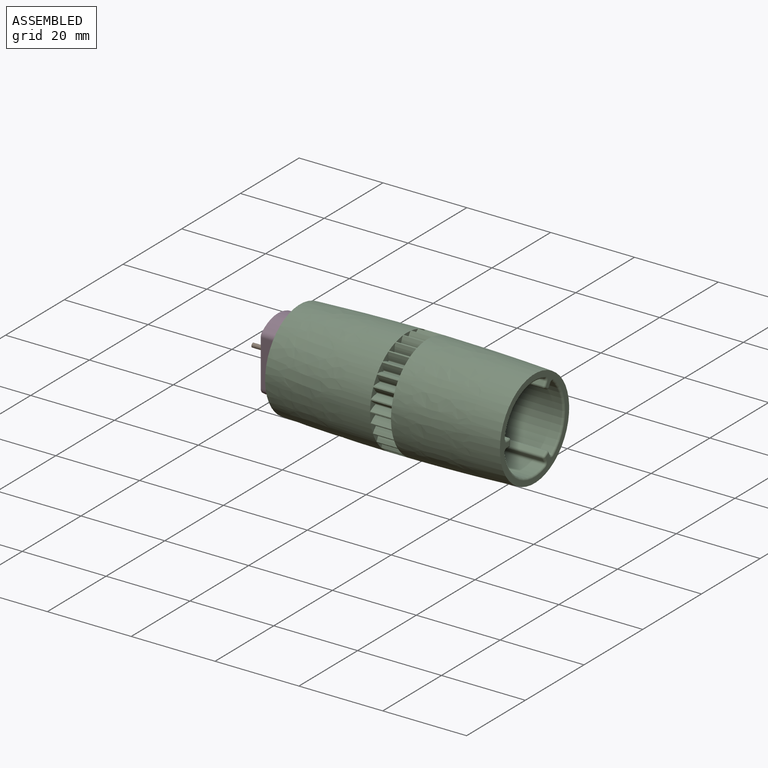
[diagram: assembled view]
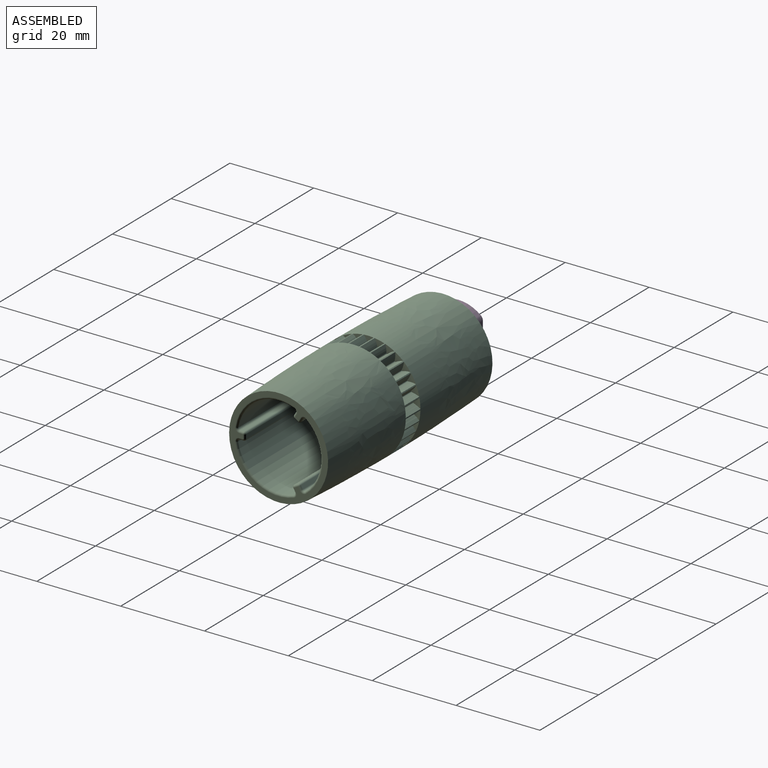
[diagram: assembled view, second angle]
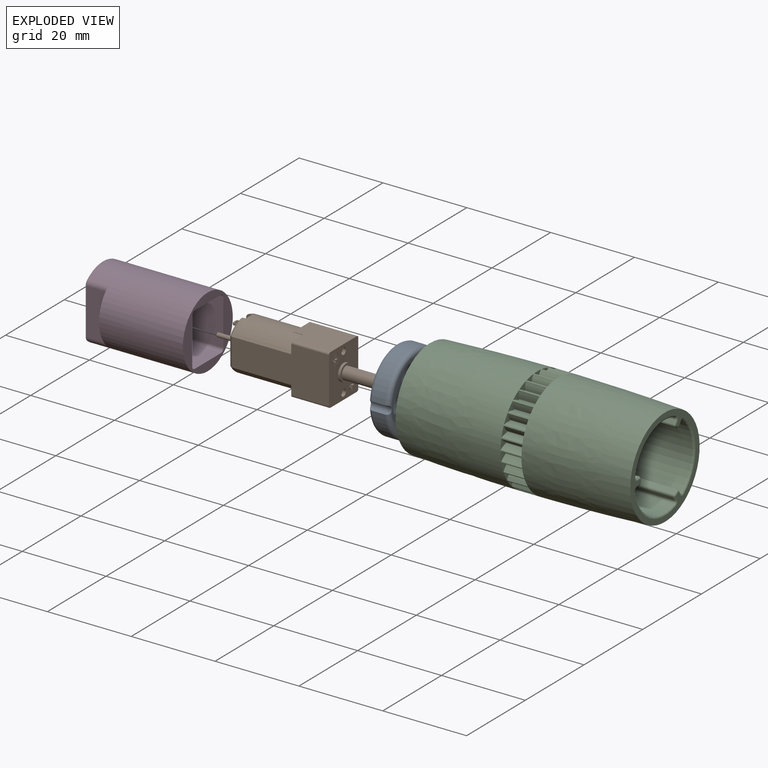
[diagram: exploded view]
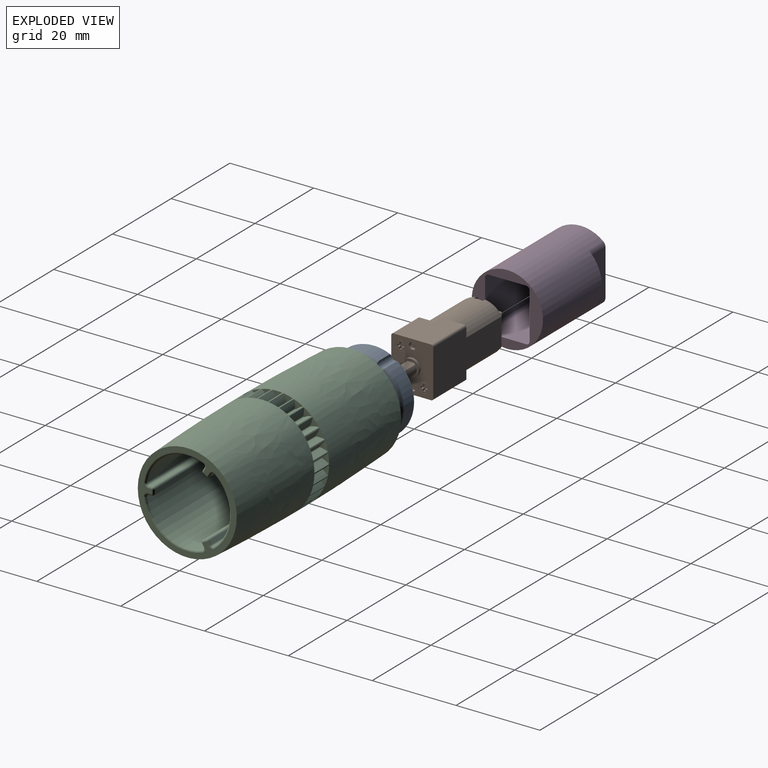
[diagram: exploded view, second angle]
ASSEMBLY  parts=4 mates=3
PART A: 26 faces, bbox 5x21.1x21.1 mm
  f0: cylinder r=1mm len=5mm, axis (-1,0,0), area 14.3mm2, adj f1,f15,f18,f19,f20,f22,f23,f25
  f1: cylinder r=9.75mm len=13.68mm, axis (-1,0,0), area 55.3mm2, adj f0,f2,f22,f25
  f2: cylinder r=1mm len=5mm, axis (-1,0,0), area 14.3mm2, adj f1,f3,f18,f19,f21,f22,f24,f25
  f3: cylinder r=9.75mm len=15.8mm, axis (-1,0,0), area 55.3mm2, adj f2,f4,f21,f24
  f4: cylinder r=1mm len=5mm, axis (-1,0,0), area 14.3mm2, adj f3,f15,f18,f19,f20,f21,f23,f24
  f5: plane 5x2.32mm, normal (0,0,-1), area 11.6mm2, adj f6,f16,f18,f19
  f6: cylinder r=1.6mm len=5mm, axis (-1,0,0), area 18mm2, adj f5,f7,f18,f19
  f7: plane 5x1.91mm, normal (0,-1,0), area 9.5mm2, adj f6,f8,f18,f19
  f8: cylinder r=0.12mm len=5mm, axis (-1,0,0), area 2mm2, adj f7,f9,f18,f19
  f9: plane 5x1.91mm, normal (0,1,0), area 9.5mm2, adj f8,f16,f18,f19
  f10: cylinder r=2.5mm len=5mm, axis (-1,0,0), area 78.5mm2, adj f18,f19
  f11: cylinder r=2.5mm len=5mm, axis (-1,0,0), area 78.5mm2, adj f18,f19
  f12: cylinder r=2.5mm len=5mm, axis (-1,0,0), area 78.5mm2, adj f18,f19
  f13: cylinder r=2.5mm len=5mm, axis (-1,0,0), area 78.5mm2, adj f18,f19
  f14: cylinder r=2.5mm len=5mm, axis (-1,0,0), area 78.5mm2, adj f18,f19
  f15: cylinder r=9.75mm len=13.68mm, axis (-1,0,0), area 55.3mm2, adj f0,f4,f20,f23
  f16: cylinder r=1.6mm len=5mm, axis (-1,0,0), area 18mm2, adj f5,f9,f18,f19
  f17: cylinder r=2.5mm len=5mm, axis (-1,0,0), area 78.5mm2, adj f18,f19
  f18: plane 17.5x17.5mm, normal (1,0,0), area 115mm2, adj f0,f2,f4,f5,f6,f7,f8,f9
  f19: plane 17.5x17.5mm, normal (-1,0,0), area 115mm2, adj f0,f2,f4,f5,f6,f7,f8,f9
  f20: torus R=8.75mm, axis (1,0,0), area 28.2mm2, adj f0,f4,f15,f19
  f21: torus R=8.75mm, axis (1,0,0), area 28.2mm2, adj f2,f3,f4,f19
  f22: torus R=8.75mm, axis (1,0,0), area 28.2mm2, adj f0,f1,f2,f19
  f23: torus R=8.75mm, axis (1,0,0), area 28.2mm2, adj f0,f4,f15,f18
  f24: torus R=8.75mm, axis (1,0,0), area 28.2mm2, adj f2,f3,f4,f18
  f25: torus R=8.75mm, axis (1,0,0), area 28.2mm2, adj f0,f1,f2,f18
PART B: 107 faces, bbox 39.4x10.9x12.9 mm
  f0: plane 5x2.68mm, normal (-1,0,0), area 3.9mm2, adj f6,f12,f17,f99
  f1: plane 1x0.08mm, normal (-1,0,0), area 0mm2, adj f12,f97,f99
  f2: plane 5x2.68mm, normal (-1,0,0), area 3.9mm2, adj f5,f7,f16,f17
  f3: plane 1x0.08mm, normal (-1,0,0), area 0mm2, adj f5,f16,f98
  f4: plane 11x9mm, normal (0,-1,0), area 99mm2, adj f8,f9,f94,f95,f96,f100
  f5: plane 11.3x9mm, normal (0,0,1), area 93.6mm2, adj f2,f3,f7,f8,f94,f95,f98
  f6: cylinder r=0.5mm len=11.3mm, axis (-1,0,0), area 8.9mm2, adj f0,f17,f94,f99
  f7: cylinder r=0.5mm len=11.3mm, axis (-1,0,0), area 8.9mm2, adj f2,f5,f17,f94
  f8: cylinder r=0.5mm len=9mm, axis (-1,0,0), area 7.1mm2, adj f4,f5,f94,f95
  f9: cylinder r=0.5mm len=9mm, axis (-1,0,0), area 7.1mm2, adj f4,f94,f96,f99
  f10: plane 4x4mm, normal (-1,0,0), area 11.8mm2, adj f38,f47
  f11: plane 9.78x8mm, normal (-1,0,0), area 47.2mm2, adj f13,f14,f15,f18,f19,f20,f21,f22
  f12: cylinder r=6mm len=14mm, axis (1,0,0), area 148.5mm2, adj f0,f1,f13,f14,f17,f43,f45,f46
  f13: torus R=5mm, axis (1,0,0), area 6.8mm2, adj f11,f12,f20,f43
  f14: torus R=5mm, axis (1,0,0), area 6.9mm2, adj f11,f12,f18,f45,f103
  f15: torus R=5mm, axis (1,0,0), area 6.9mm2, adj f11,f16,f18,f39,f102,f103
  f16: cylinder r=6mm len=14mm, axis (1,0,0), area 148.5mm2, adj f2,f3,f15,f17,f19,f39,f41,f42
  f17: plane 23x11mm, normal (0,1,0), area 201.9mm2, adj f0,f2,f6,f7,f12,f16,f20,f94
  f18: cylinder r=1mm len=6.63mm, axis (0,0,1), area 9.8mm2, adj f11,f14,f15,f103
  f19: torus R=5mm, axis (1,0,0), area 6.8mm2, adj f11,f16,f20,f41
  f20: cylinder r=1mm len=6.63mm, axis (0,0,-1), area 9.9mm2, adj f11,f13,f17,f19
  f21: plane 2x1.6mm, normal (0,0,-1), area 2.4mm2, adj f11,f22,f24,f25,f32,f33,f34
  f22: plane 1.8x0.5mm, normal (0,-1,0), area 0.9mm2, adj f11,f21,f23,f33
  f23: plane 2x1.6mm, normal (0,0,1), area 2.4mm2, adj f11,f22,f24,f25,f32,f33,f34
  f24: plane 1.8x0.5mm, normal (0,1,0), area 0.9mm2, adj f11,f21,f23,f34
  f25: plane 1.2x0.5mm, normal (-1,0,0), area 0.6mm2, adj f21,f23,f33,f34
  f26: plane 2x1.6mm, normal (0,0,-1), area 2.4mm2, adj f11,f27,f29,f30,f31,f35,f36
  f27: plane 1.8x0.5mm, normal (0,-1,0), area 0.9mm2, adj f11,f26,f28,f35
  f28: plane 2x1.6mm, normal (0,0,1), area 2.4mm2, adj f11,f27,f29,f30,f31,f35,f36
  f29: plane 1.8x0.5mm, normal (0,1,0), area 0.9mm2, adj f11,f26,f28,f36
  f30: plane 1.2x0.5mm, normal (-1,0,0), area 0.6mm2, adj f26,f28,f35,f36
  f31: cylinder r=0.5mm len=1mm, axis (0,0,1), area 1.6mm2, adj f26,f28
  f32: cylinder r=0.5mm len=1mm, axis (0,0,1), area 1.6mm2, adj f21,f23
  f33: plane 0.5x0.2mm, normal (-0.71,-0.71,0), area 0.1mm2, adj f21,f22,f23,f25
  f34: plane 0.5x0.2mm, normal (-0.71,0.71,0), area 0.1mm2, adj f21,f23,f24,f25
  f35: plane 0.5x0.2mm, normal (-0.71,-0.71,0), area 0.1mm2, adj f26,f27,f28,f30
  f36: plane 0.5x0.2mm, normal (-0.71,0.71,0), area 0.1mm2, adj f26,f28,f29,f30
  f37: cylinder r=2.5mm len=5mm, axis (1,0,0), area 15.7mm2, adj f11,f38
  f38: torus R=2mm, axis (-1,0,0), area 11.4mm2, adj f10,f37
  f39: plane 1.5x1.41mm, normal (0,1,0), area 1.9mm2, adj f11,f15,f16,f40,f42
  f40: plane 2.1x1.5mm, normal (0,0,1), area 3.1mm2, adj f11,f39,f41,f42
  f41: plane 1.6x1.51mm, normal (0,-1,0), area 1.9mm2, adj f11,f16,f19,f40,f42
  f42: plane 2.1x1.5mm, normal (-1,0,0), area 3.1mm2, adj f16,f39,f40,f41
  f43: plane 1.6x1.51mm, normal (0,-1,0), area 1.9mm2, adj f11,f12,f13,f44,f46
  f44: plane 2.1x1.5mm, normal (0,0,-1), area 3.1mm2, adj f11,f43,f45,f46
  f45: plane 1.5x1.41mm, normal (0,1,0), area 1.9mm2, adj f11,f12,f14,f44,f46
  f46: plane 2.1x1.5mm, normal (-1,0,0), area 3.1mm2, adj f12,f43,f44,f45
  f47: cylinder r=0.5mm len=4.5mm, axis (1,0,0), area 14.1mm2, adj f10,f48
  f48: plane 1x1mm, normal (-1,0,0), area 0.8mm2, adj f47
  f49: plane 1.5x1.5mm, normal (1,0,0), area 1.3mm2, adj f51,f52,f53,f54,f55,f56,f57,f58
  f50: plane 1.5x1.5mm, normal (1,0,0), area 1.2mm2, adj f63,f64,f65,f66,f67,f68,f69,f70
  f51: plane 0.5x0.5mm, normal (0,-1,0), area 0.2mm2, adj f49,f52,f62,f78
  f52: plane 0.5x0.5mm, normal (0,0,-1), area 0.2mm2, adj f49,f51,f53,f78
  f53: plane 0.5x0.5mm, normal (0,1,0), area 0.2mm2, adj f49,f52,f54,f78
  f54: plane 0.5x0.5mm, normal (0,0,-1), area 0.2mm2, adj f49,f53,f55,f78
  f55: plane 0.5x0.5mm, normal (0,1,0), area 0.2mm2, adj f49,f54,f56,f78
  f56: plane 0.5x0.5mm, normal (0,0,1), area 0.2mm2, adj f49,f55,f57,f78
  f57: plane 0.5x0.5mm, normal (0,1,0), area 0.2mm2, adj f49,f56,f58,f78
  f58: plane 0.5x0.5mm, normal (0,0,1), area 0.2mm2, adj f49,f57,f59,f78
  f59: plane 0.5x0.5mm, normal (0,-1,0), area 0.2mm2, adj f49,f58,f60,f78
  f60: plane 0.5x0.5mm, normal (0,0,1), area 0.2mm2, adj f49,f59,f61,f78
  f61: plane 0.5x0.5mm, normal (0,-1,0), area 0.2mm2, adj f49,f60,f62,f78
  f62: plane 0.5x0.5mm, normal (0,0,-1), area 0.2mm2, adj f49,f51,f61,f78
  f63: plane 0.5x0.5mm, normal (0,1,0), area 0.2mm2, adj f50,f64,f74,f79
  f64: plane 0.5x0.5mm, normal (0,0,1), area 0.2mm2, adj f50,f63,f65,f79
  f65: plane 0.5x0.5mm, normal (0,-1,0), area 0.2mm2, adj f50,f64,f66,f79
  f66: plane 0.5x0.5mm, normal (0,0,1), area 0.2mm2, adj f50,f65,f67,f79
  f67: plane 0.5x0.5mm, normal (0,-1,0), area 0.2mm2, adj f50,f66,f68,f79
  f68: plane 0.5x0.5mm, normal (0,0,-1), area 0.2mm2, adj f50,f67,f69,f79
  f69: plane 0.5x0.5mm, normal (0,-1,0), area 0.2mm2, adj f50,f68,f70,f79
  f70: plane 0.5x0.5mm, normal (0,0,-1), area 0.2mm2, adj f50,f69,f71,f79
  f71: plane 0.5x0.5mm, normal (0,1,0), area 0.2mm2, adj f50,f70,f72,f79
  f72: plane 0.5x0.5mm, normal (0,0,-1), area 0.2mm2, adj f50,f71,f73,f79
  f73: plane 0.5x0.5mm, normal (0,1,0), area 0.2mm2, adj f50,f72,f74,f79
  f74: plane 0.5x0.5mm, normal (0,0,1), area 0.2mm2, adj f50,f63,f73,f79
  f75: plane 3x2.5mm, normal (1,0,0), area 6.3mm2, adj f77,f80
  f76: plane 2.24x0.5mm, normal (1,0,0), area 0.8mm2, adj f77,f81
  f77: plane 9.27x2.24mm, normal (0,0,1), area 20.7mm2, adj f75,f76,f80,f81
  f78: plane 2.45x2.45mm, normal (1,0,0), area 3.5mm2, adj f51,f52,f53,f54,f55,f56,f57,f58
  f79: plane 2.45x2.45mm, normal (1,0,0), area 3.5mm2, adj f63,f64,f65,f66,f67,f68,f69,f70
  f80: cylinder r=1.5mm len=8.67mm, axis (-1,0,0), area 59.8mm2, adj f75,f77,f84
  f81: cylinder r=1.5mm len=2.24mm, axis (-1,0,0), area 1.5mm2, adj f76,f77,f84
  f82: cylinder r=1.22mm len=2.45mm, axis (1,0,0), area 6.2mm2, adj f78,f85
  f83: cylinder r=1.22mm len=2.45mm, axis (1,0,0), area 6.2mm2, adj f79,f88
  f84: plane 4x4mm, normal (1,0,0), area 5.5mm2, adj f80,f81,f89
  f85: plane 2.5x2.5mm, normal (1,0,0), area 0.2mm2, adj f82,f90
  f86: plane 1.6x1.6mm, normal (1,0,0), area 2mm2, adj f91
  f87: plane 1.6x1.6mm, normal (1,0,0), area 2mm2, adj f92
  f88: plane 2.5x2.5mm, normal (1,0,0), area 0.2mm2, adj f83,f93
  f89: cylinder r=2mm len=4mm, axis (-1,0,0), area 7.5mm2, adj f84,f94
  f90: cylinder r=1.25mm len=2.5mm, axis (1,0,0), area 6.3mm2, adj f85,f94
  f91: cylinder r=0.8mm len=1.6mm, axis (1,0,0), area 4mm2, adj f86,f94
  f92: cylinder r=0.8mm len=1.6mm, axis (1,0,0), area 4mm2, adj f87,f94
  f93: cylinder r=1.25mm len=2.5mm, axis (1,0,0), area 6.3mm2, adj f88,f94
  f94: plane 12x10mm, normal (1,0,0), area 93.4mm2, adj f4,f5,f6,f7,f8,f9,f17,f89
  f95: plane 4x2.68mm, normal (-1,0,0), area 3.9mm2, adj f4,f5,f8,f16,f98
  f96: plane 4x2.68mm, normal (-1,0,0), area 3.9mm2, adj f4,f9,f12,f97,f99
  f97: plane 2.3x0.08mm, normal (0,-1,0), area 0.2mm2, adj f1,f12,f96,f99
  f98: plane 2.3x0.08mm, normal (0,-1,0), area 0.2mm2, adj f3,f5,f16,f95
  f99: plane 11.3x9mm, normal (0,0,-1), area 93.7mm2, adj f0,f1,f6,f9,f94,f96,f97
  f100: plane 6.63x0mm, normal (-1,0,0), area 0mm2, adj f4,f101,f102,f103
  f101: plane 14x0mm, normal (0,0,1), area 0mm2, adj f12,f100,f103
  f102: plane 14.01x0mm, normal (0,0,-1), area 0mm2, adj f15,f16,f100,f103
  f103: plane 14.01x6.63mm, normal (0,-1,0), area 93mm2, adj f14,f15,f18,f100,f101,f102
  f104: plane 0.5x0.5mm, normal (1,0,0), area 0.2mm2, adj f106
  f105: plane 0.5x0.5mm, normal (-1,0,0), area 0.2mm2, adj f106
  f106: cylinder r=0.25mm len=0.8mm, axis (-1,0,0), area 1.3mm2, adj f104,f105
PART C: 256 faces, bbox 25x56x25 mm
  f0: cylinder r=10mm len=55mm, axis (0,-1,0), area 977.5mm2, adj f203,f204,f223,f247
  f1: cylinder r=10mm len=55mm, axis (0,-1,0), area 977.5mm2, adj f205,f207,f224,f248
  f2: cylinder r=10mm len=55mm, axis (0,-1,0), area 977.5mm2, adj f202,f206,f208,f232
  f3: cylinder r=12.48mm len=5mm, axis (0,-1,0), area 1.3mm2, adj f117,f121,f152,f184
  f4: cylinder r=12.48mm len=5mm, axis (0,-1,0), area 1.3mm2, adj f114,f118,f152,f184
  f5: cylinder r=12.48mm len=5mm, axis (0,-1,0), area 1.3mm2, adj f111,f115,f152,f184
  f6: cylinder r=12.48mm len=5mm, axis (0,-1,0), area 1.3mm2, adj f105,f112,f152,f184
  f7: cylinder r=12.48mm len=5mm, axis (0,-1,0), area 1.3mm2, adj f102,f109,f152,f184
  f8: cylinder r=12.48mm len=5mm, axis (0,-1,0), area 1.3mm2, adj f106,f108,f152,f184
  f9: cylinder r=12.48mm len=5mm, axis (0,-1,0), area 1.3mm2, adj f99,f103,f152,f184
  f10: cylinder r=12.48mm len=5mm, axis (0,-1,0), area 1.3mm2, adj f33,f100,f152,f184
  f11: cylinder r=12.48mm len=5mm, axis (0,-1,0), area 1.3mm2, adj f90,f97,f152,f184
  f12: cylinder r=12.48mm len=5mm, axis (0,-1,0), area 1.3mm2, adj f94,f96,f152,f184
  f13: cylinder r=12.48mm len=5mm, axis (0,-1,0), area 1.3mm2, adj f87,f91,f152,f184
  f14: cylinder r=12.48mm len=5mm, axis (0,-1,0), area 1.3mm2, adj f88,f120,f152,f184
  f15: cylinder r=12.48mm len=5mm, axis (0,-1,0), area 1.3mm2, adj f85,f93,f152,f184
  f16: cylinder r=12.48mm len=5mm, axis (0,-1,0), area 1.3mm2, adj f82,f84,f152,f184
  f17: cylinder r=12.48mm len=5mm, axis (0,-1,0), area 1.3mm2, adj f79,f81,f152,f184
  f18: cylinder r=12.48mm len=5mm, axis (0,-1,0), area 1.3mm2, adj f76,f78,f152,f184
  f19: cylinder r=12.48mm len=5mm, axis (0,-1,0), area 1.3mm2, adj f66,f73,f152,f184
  f20: cylinder r=12.48mm len=5mm, axis (0,-1,0), area 1.3mm2, adj f70,f72,f152,f184
  f21: cylinder r=12.48mm len=5mm, axis (0,-1,0), area 1.3mm2, adj f63,f67,f152,f184
  f22: cylinder r=12.48mm len=5mm, axis (0,-1,0), area 1.3mm2, adj f64,f75,f152,f184
  f23: cylinder r=12.48mm len=5mm, axis (0,-1,0), area 1.3mm2, adj f61,f69,f152,f184
  f24: cylinder r=12.48mm len=5mm, axis (0,-1,0), area 1.3mm2, adj f58,f60,f152,f184
  f25: cylinder r=12.48mm len=5mm, axis (0,-1,0), area 1.3mm2, adj f55,f57,f152,f184
  f26: cylinder r=12.48mm len=5mm, axis (0,-1,0), area 1.3mm2, adj f52,f54,f152,f184
  f27: cylinder r=12.48mm len=5mm, axis (0,-1,0), area 1.3mm2, adj f45,f49,f152,f184
  f28: cylinder r=12.48mm len=5mm, axis (0,-1,0), area 1.3mm2, adj f39,f46,f152,f184
  f29: cylinder r=12.48mm len=5mm, axis (0,-1,0), area 1.3mm2, adj f43,f51,f152,f184
  f30: cylinder r=12.48mm len=5mm, axis (0,-1,0), area 1.3mm2, adj f40,f42,f152,f184
  f31: cylinder r=12.48mm len=5mm, axis (0,-1,0), area 1.3mm2, adj f37,f48,f152,f184
  f32: cylinder r=12.48mm len=5mm, axis (0,-1,0), area 1.3mm2, adj f34,f36,f152,f184
  f33: extruded ~5x1.59mm, area 9.4mm2, adj f10,f35,f131,f176
  f34: extruded ~5x1.59mm, area 9.4mm2, adj f32,f35,f131,f176
  f35: cylinder r=0.18mm len=5mm, axis (0,-1,0), area 2.2mm2, adj f33,f34,f131,f176
  f36: extruded ~5x1.76mm, area 9.4mm2, adj f32,f38,f132,f175
  f37: extruded ~5x1.34mm, area 9.4mm2, adj f31,f38,f132,f175
  f38: cylinder r=0.18mm len=5mm, axis (0,-1,0), area 2.2mm2, adj f36,f37,f132,f175
  f39: extruded ~5x1.81mm, area 9.4mm2, adj f28,f41,f135,f172
  f40: extruded ~5x1.85mm, area 9.4mm2, adj f30,f41,f135,f172
  f41: cylinder r=0.18mm len=5mm, axis (0,-1,0), area 2.2mm2, adj f39,f40,f135,f172
  f42: extruded ~5x1.67mm, area 9.4mm2, adj f30,f44,f136,f171
  f43: extruded ~5x1.88mm, area 9.4mm2, adj f29,f44,f136,f171
  f44: cylinder r=0.18mm len=5mm, axis (0,-1,0), area 2.2mm2, adj f42,f43,f136,f171
  f45: extruded ~5x1.88mm, area 9.4mm2, adj f27,f47,f134,f173
  f46: extruded ~5x1.75mm, area 9.4mm2, adj f28,f47,f134,f173
  f47: cylinder r=0.18mm len=5mm, axis (0,-1,0), area 2.2mm2, adj f45,f46,f134,f173
  f48: extruded ~5x1.86mm, area 9.4mm2, adj f31,f50,f133,f174
  f49: extruded ~5x1.57mm, area 9.4mm2, adj f27,f50,f133,f174
  f50: cylinder r=0.18mm len=5mm, axis (0,-1,0), area 2.2mm2, adj f48,f49,f133,f174
  f51: extruded ~5x1.45mm, area 9.4mm2, adj f29,f53,f137,f170
  f52: extruded ~5x1.82mm, area 9.4mm2, adj f26,f53,f137,f170
  f53: cylinder r=0.18mm len=5mm, axis (0,-1,0), area 2.2mm2, adj f51,f52,f137,f170
  f54: extruded ~5x1.47mm, area 9.4mm2, adj f26,f56,f138,f169
  f55: extruded ~5x1.68mm, area 9.4mm2, adj f25,f56,f138,f169
  f56: cylinder r=0.18mm len=5mm, axis (0,-1,0), area 2.2mm2, adj f54,f55,f138,f169
  f57: extruded ~5x1.68mm, area 9.4mm2, adj f25,f59,f139,f168
  f58: extruded ~5x1.47mm, area 9.4mm2, adj f24,f59,f139,f168
  f59: cylinder r=0.18mm len=5mm, axis (0,-1,0), area 2.2mm2, adj f57,f58,f139,f168
  f60: extruded ~5x1.82mm, area 9.4mm2, adj f24,f62,f140,f167
  f61: extruded ~5x1.45mm, area 9.4mm2, adj f23,f62,f140,f167
  f62: cylinder r=0.18mm len=5mm, axis (0,-1,0), area 2.2mm2, adj f60,f61,f140,f167
  f63: extruded ~5x1.57mm, area 9.4mm2, adj f21,f65,f144,f163
  f64: extruded ~5x1.86mm, area 9.4mm2, adj f22,f65,f144,f163
  f65: cylinder r=0.18mm len=5mm, axis (0,-1,0), area 2.2mm2, adj f63,f64,f144,f163
  f66: extruded ~5x1.75mm, area 9.4mm2, adj f19,f68,f143,f164
  f67: extruded ~5x1.88mm, area 9.4mm2, adj f21,f68,f143,f164
  f68: cylinder r=0.18mm len=5mm, axis (0,-1,0), area 2.2mm2, adj f66,f67,f143,f164
  f69: extruded ~5x1.88mm, area 9.4mm2, adj f23,f71,f141,f166
  f70: extruded ~5x1.67mm, area 9.4mm2, adj f20,f71,f141,f166
  f71: cylinder r=0.18mm len=5mm, axis (0,-1,0), area 2.2mm2, adj f69,f70,f141,f166
  f72: extruded ~5x1.85mm, area 9.4mm2, adj f20,f74,f142,f165
  f73: extruded ~5x1.81mm, area 9.4mm2, adj f19,f74,f142,f165
  f74: cylinder r=0.18mm len=5mm, axis (0,-1,0), area 2.2mm2, adj f72,f73,f142,f165
  f75: extruded ~5x1.34mm, area 9.4mm2, adj f22,f77,f145,f162
  f76: extruded ~5x1.76mm, area 9.4mm2, adj f18,f77,f145,f162
  f77: cylinder r=0.18mm len=5mm, axis (0,-1,0), area 2.2mm2, adj f75,f76,f145,f162
  f78: extruded ~5x1.59mm, area 9.4mm2, adj f18,f80,f146,f161
  f79: extruded ~5x1.59mm, area 9.4mm2, adj f17,f80,f146,f161
  f80: cylinder r=0.18mm len=5mm, axis (0,-1,0), area 2.2mm2, adj f78,f79,f146,f161
  f81: extruded ~5x1.76mm, area 9.4mm2, adj f17,f83,f147,f160
  f82: extruded ~5x1.34mm, area 9.4mm2, adj f16,f83,f147,f160
  f83: cylinder r=0.18mm len=5mm, axis (0,-1,0), area 2.2mm2, adj f81,f82,f147,f160
  f84: extruded ~5x1.86mm, area 9.4mm2, adj f16,f86,f148,f159
  f85: extruded ~5x1.57mm, area 9.4mm2, adj f15,f86,f148,f159
  f86: cylinder r=0.18mm len=5mm, axis (0,-1,0), area 2.2mm2, adj f84,f85,f148,f159
  f87: extruded ~5x1.45mm, area 9.4mm2, adj f13,f89,f153,f155
  f88: extruded ~5x1.82mm, area 9.4mm2, adj f14,f89,f153,f155
  f89: cylinder r=0.18mm len=5mm, axis (0,-1,0), area 2.2mm2, adj f87,f88,f153,f155
  f90: extruded ~5x1.67mm, area 9.4mm2, adj f11,f92,f151,f156
  f91: extruded ~5x1.88mm, area 9.4mm2, adj f13,f92,f151,f156
  f92: cylinder r=0.18mm len=5mm, axis (0,-1,0), area 2.2mm2, adj f90,f91,f151,f156
  f93: extruded ~5x1.88mm, area 9.4mm2, adj f15,f95,f149,f158
  f94: extruded ~5x1.75mm, area 9.4mm2, adj f12,f95,f149,f158
  f95: cylinder r=0.18mm len=5mm, axis (0,-1,0), area 2.2mm2, adj f93,f94,f149,f158
  f96: extruded ~5x1.81mm, area 9.4mm2, adj f12,f98,f150,f157
  f97: extruded ~5x1.85mm, area 9.4mm2, adj f11,f98,f150,f157
  f98: cylinder r=0.18mm len=5mm, axis (0,-1,0), area 2.2mm2, adj f96,f97,f150,f157
  f99: extruded ~5x1.34mm, area 9.4mm2, adj f9,f101,f130,f177
  f100: extruded ~5x1.76mm, area 9.4mm2, adj f10,f101,f130,f177
  f101: cylinder r=0.18mm len=5mm, axis (0,-1,0), area 2.2mm2, adj f99,f100,f130,f177
  f102: extruded ~5x1.57mm, area 9.4mm2, adj f7,f104,f129,f178
  f103: extruded ~5x1.86mm, area 9.4mm2, adj f9,f104,f129,f178
  f104: cylinder r=0.18mm len=5mm, axis (0,-1,0), area 2.2mm2, adj f102,f103,f129,f178
  f105: extruded ~5x1.85mm, area 9.4mm2, adj f6,f107,f127,f180
  f106: extruded ~5x1.81mm, area 9.4mm2, adj f8,f107,f127,f180
  f107: cylinder r=0.18mm len=5mm, axis (0,-1,0), area 2.2mm2, adj f105,f106,f127,f180
  f108: extruded ~5x1.75mm, area 9.4mm2, adj f8,f110,f128,f179
  f109: extruded ~5x1.88mm, area 9.4mm2, adj f7,f110,f128,f179
  f110: cylinder r=0.18mm len=5mm, axis (0,-1,0), area 2.2mm2, adj f108,f109,f128,f179
  f111: extruded ~5x1.88mm, area 9.4mm2, adj f5,f113,f126,f181
  f112: extruded ~5x1.67mm, area 9.4mm2, adj f6,f113,f126,f181
  f113: cylinder r=0.18mm len=5mm, axis (0,-1,0), area 2.2mm2, adj f111,f112,f126,f181
  f114: extruded ~5x1.82mm, area 9.4mm2, adj f4,f116,f125,f182
  f115: extruded ~5x1.45mm, area 9.4mm2, adj f5,f116,f125,f182
  f116: cylinder r=0.18mm len=5mm, axis (0,-1,0), area 2.2mm2, adj f114,f115,f125,f182
  f117: extruded ~5x1.68mm, area 9.4mm2, adj f3,f119,f124,f183
  f118: extruded ~5x1.47mm, area 9.4mm2, adj f4,f119,f124,f183
  f119: cylinder r=0.18mm len=5mm, axis (0,-1,0), area 2.2mm2, adj f117,f118,f124,f183
  f120: extruded ~5x1.47mm, area 9.4mm2, adj f14,f122,f123,f186
  f121: extruded ~5x1.68mm, area 9.4mm2, adj f3,f122,f123,f186
  f122: cylinder r=0.18mm len=5mm, axis (0,-1,0), area 2.2mm2, adj f120,f121,f123,f186
  f123: plane 2.39x1.83mm, normal (0,-1,0), area 2mm2, adj f120,f121,f122,f152
  f124: plane 2.39x1.83mm, normal (0,-1,0), area 2mm2, adj f117,f118,f119,f152
  f125: plane 2.28x2.02mm, normal (0,-1,0), area 2mm2, adj f114,f115,f116,f152
  f126: plane 2.11x2.09mm, normal (0,-1,0), area 2.1mm2, adj f111,f112,f113,f152
  f127: plane 2.12x2.09mm, normal (0,-1,0), area 2mm2, adj f105,f106,f107,f152
  f128: plane 2.13x2.05mm, normal (0,-1,0), area 2mm2, adj f108,f109,f110,f152
  f129: plane 2.17x2.06mm, normal (0,-1,0), area 2mm2, adj f102,f103,f104,f152
  f130: plane 2.35x1.94mm, normal (0,-1,0), area 2mm2, adj f99,f100,f101,f152
  f131: plane 2.37x1.76mm, normal (0,-1,0), area 2mm2, adj f33,f34,f35,f152
  f132: plane 2.35x1.94mm, normal (0,-1,0), area 2mm2, adj f36,f37,f38,f152
  f133: plane 2.17x2.06mm, normal (0,-1,0), area 2mm2, adj f48,f49,f50,f152
  f134: plane 2.13x2.05mm, normal (0,-1,0), area 2mm2, adj f45,f46,f47,f152
  f135: plane 2.12x2.09mm, normal (0,-1,0), area 2mm2, adj f39,f40,f41,f152
  f136: plane 2.11x2.09mm, normal (0,-1,0), area 2mm2, adj f42,f43,f44,f152
  f137: plane 2.28x2.02mm, normal (0,-1,0), area 2mm2, adj f51,f52,f53,f152
  f138: plane 2.39x1.83mm, normal (0,-1,0), area 2mm2, adj f54,f55,f56,f152
  f139: plane 2.39x1.83mm, normal (0,-1,0), area 2mm2, adj f57,f58,f59,f152
  f140: plane 2.28x2.02mm, normal (0,-1,0), area 2mm2, adj f60,f61,f62,f152
  f141: plane 2.11x2.09mm, normal (0,-1,0), area 2mm2, adj f69,f70,f71,f152
  f142: plane 2.12x2.09mm, normal (0,-1,0), area 2mm2, adj f72,f73,f74,f152
  f143: plane 2.13x2.05mm, normal (0,-1,0), area 2mm2, adj f66,f67,f68,f152
  f144: plane 2.17x2.06mm, normal (0,-1,0), area 2mm2, adj f63,f64,f65,f152
  f145: plane 2.35x1.94mm, normal (0,-1,0), area 2mm2, adj f75,f76,f77,f152
  f146: plane 2.37x1.76mm, normal (0,-1,0), area 2mm2, adj f78,f79,f80,f152
  f147: plane 2.35x1.94mm, normal (0,-1,0), area 2mm2, adj f81,f82,f83,f152
  f148: plane 2.17x2.06mm, normal (0,-1,0), area 2mm2, adj f84,f85,f86,f152
  f149: plane 2.13x2.05mm, normal (0,-1,0), area 2mm2, adj f93,f94,f95,f152
  f150: plane 2.12x2.09mm, normal (0,-1,0), area 2mm2, adj f96,f97,f98,f152
  f151: plane 2.11x2.09mm, normal (0,-1,0), area 2.1mm2, adj f90,f91,f92,f152
  f152: revolved ~25.5x24.96mm, area 1961mm2, adj f3,f4,f5,f6,f7,f8,f9,f10
  f153: plane 2.28x2.02mm, normal (0,-1,0), area 2mm2, adj f87,f88,f89,f152
  f154: plane 23.6x23.6mm, normal (0,1,0), area 98.8mm2, adj f152,f232,f233,f234,f235,f236,f239,f240
  f155: plane 2.25x2mm, normal (0,1,0), area 2mm2, adj f87,f88,f89,f184
  f156: plane 2.09x2.05mm, normal (0,1,0), area 2.1mm2, adj f90,f91,f92,f184
  f157: plane 2.11x2.08mm, normal (0,1,0), area 2mm2, adj f96,f97,f98,f184
  f158: plane 2.11x2.03mm, normal (0,1,0), area 2mm2, adj f93,f94,f95,f184
  f159: plane 2.16x2.06mm, normal (0,1,0), area 2mm2, adj f84,f85,f86,f184
  f160: plane 2.31x1.92mm, normal (0,1,0), area 2mm2, adj f81,f82,f83,f184
  f161: plane 2.36x1.76mm, normal (0,1,0), area 2mm2, adj f78,f79,f80,f184
  f162: plane 2.31x1.92mm, normal (0,1,0), area 2mm2, adj f75,f76,f77,f184
  f163: plane 2.16x2.05mm, normal (0,1,0), area 2mm2, adj f63,f64,f65,f184
  f164: plane 2.11x2.03mm, normal (0,1,0), area 2mm2, adj f66,f67,f68,f184
  f165: plane 2.11x2.08mm, normal (0,1,0), area 2mm2, adj f72,f73,f74,f184
  f166: plane 2.09x2.05mm, normal (0,1,0), area 2mm2, adj f69,f70,f71,f184
  f167: plane 2.25x2mm, normal (0,1,0), area 2mm2, adj f60,f61,f62,f184
  f168: plane 2.35x1.83mm, normal (0,1,0), area 2mm2, adj f57,f58,f59,f184
  f169: plane 2.35x1.83mm, normal (0,1,0), area 2mm2, adj f54,f55,f56,f184
  f170: plane 2.25x2mm, normal (0,1,0), area 2mm2, adj f51,f52,f53,f184
  f171: plane 2.09x2.05mm, normal (0,1,0), area 2mm2, adj f42,f43,f44,f184
  f172: plane 2.11x2.08mm, normal (0,1,0), area 2mm2, adj f39,f40,f41,f184
  f173: plane 2.11x2.03mm, normal (0,1,0), area 2mm2, adj f45,f46,f47,f184
  f174: plane 2.16x2.06mm, normal (0,1,0), area 2mm2, adj f48,f49,f50,f184
  f175: plane 2.31x1.92mm, normal (0,1,0), area 2mm2, adj f36,f37,f38,f184
  f176: plane 2.36x1.76mm, normal (0,1,0), area 2mm2, adj f33,f34,f35,f184
  f177: plane 2.31x1.92mm, normal (0,1,0), area 2mm2, adj f99,f100,f101,f184
  f178: plane 2.16x2.05mm, normal (0,1,0), area 2mm2, adj f102,f103,f104,f184
  f179: plane 2.11x2.03mm, normal (0,1,0), area 2mm2, adj f108,f109,f110,f184
  f180: plane 2.11x2.08mm, normal (0,1,0), area 2mm2, adj f105,f106,f107,f184
  f181: plane 2.09x2.05mm, normal (0,1,0), area 2.1mm2, adj f111,f112,f113,f184
  f182: plane 2.25x2mm, normal (0,1,0), area 2mm2, adj f114,f115,f116,f184
  f183: plane 2.35x1.83mm, normal (0,1,0), area 2mm2, adj f117,f118,f119,f184
  f184: revolved ~25.5x24.96mm, area 1961mm2, adj f3,f4,f5,f6,f7,f8,f9,f10
  f185: plane 23.6x23.6mm, normal (0,-1,0), area 98.8mm2, adj f184,f208,f209,f210,f211,f212,f215,f216
  f186: plane 2.35x1.83mm, normal (0,1,0), area 2mm2, adj f120,f121,f122,f184
  f187: plane 55x0.88mm, normal (1,0,0), area 48.4mm2, adj f189,f206,f212,f236
  f188: plane 55x0.88mm, normal (-1,0,0), area 48.4mm2, adj f190,f207,f220,f244
  f189: cylinder r=0.5mm len=55mm, axis (0,-1,0), area 43.2mm2, adj f187,f191,f214,f238
  f190: cylinder r=0.5mm len=55mm, axis (0,-1,0), area 43.2mm2, adj f188,f191,f218,f242
  f191: plane 55x1mm, normal (0,0,-1), area 55mm2, adj f189,f190,f216,f240
  f192: plane 55x0.76mm, normal (0.5,0,-0.87), area 48.4mm2, adj f194,f204,f227,f251
  f193: plane 55x0.76mm, normal (-0.5,0,0.87), area 48.4mm2, adj f196,f205,f228,f252
  f194: cylinder r=0.5mm len=55mm, axis (0,-1,0), area 43.2mm2, adj f192,f195,f229,f253
  f195: plane 55x0.87mm, normal (0.87,0,0.5), area 55mm2, adj f194,f196,f231,f255
  f196: cylinder r=0.5mm len=55mm, axis (0,-1,0), area 43.2mm2, adj f193,f195,f230,f254
  f197: plane 55x0.76mm, normal (0.5,0,0.87), area 48.4mm2, adj f199,f202,f211,f235
  f198: plane 55x0.76mm, normal (-0.5,0,-0.87), area 48.4mm2, adj f201,f203,f219,f243
  f199: cylinder r=0.5mm len=55mm, axis (0,-1,0), area 43.2mm2, adj f197,f200,f213,f237
  f200: plane 55x0.87mm, normal (-0.87,0,0.5), area 55mm2, adj f199,f201,f215,f239
  f201: cylinder r=0.5mm len=55mm, axis (0,-1,0), area 43.2mm2, adj f198,f200,f217,f241
  f202: cylinder r=0.5mm len=55mm, axis (0,-1,0), area 47.6mm2, adj f2,f197,f209,f233
  f203: cylinder r=0.5mm len=55mm, axis (0,-1,0), area 47.6mm2, adj f0,f198,f221,f245
  f204: cylinder r=0.5mm len=55mm, axis (0,-1,0), area 47.6mm2, adj f0,f192,f225,f249
  f205: cylinder r=0.5mm len=55mm, axis (0,-1,0), area 47.6mm2, adj f1,f193,f226,f250
  f206: cylinder r=0.5mm len=55mm, axis (0,-1,0), area 47.6mm2, adj f2,f187,f210,f234
  f207: cylinder r=0.5mm len=55mm, axis (0,-1,0), area 47.6mm2, adj f1,f188,f222,f246
  f208: torus R=10.5mm, axis (0,1,0), area 14.2mm2, adj f2,f185,f209,f210
  f209: torus R=1mm, axis (0,1,0), area 0.9mm2, adj f185,f202,f208,f211
  f210: torus R=1mm, axis (0,1,0), area 0.9mm2, adj f185,f206,f208,f212
  f211: cylinder r=0.5mm len=1.01mm, axis (0.87,0,-0.5), area 0.7mm2, adj f185,f197,f209,f213
  f212: cylinder r=0.5mm len=0.88mm, axis (0,0,-1), area 0.7mm2, adj f185,f187,f210,f214
  f213: sphere r=0.5mm, area 0.3mm2, adj f199,f211,f215
  f214: sphere r=0.5mm, area 0.4mm2, adj f189,f212,f216
  f215: cylinder r=0.5mm len=1.12mm, axis (0.5,0,0.87), area 0.8mm2, adj f185,f200,f213,f217
  f216: cylinder r=0.5mm len=1mm, axis (-1,0,0), area 0.8mm2, adj f185,f191,f214,f218
  f217: sphere r=0.5mm, area 0.4mm2, adj f201,f215,f219
  f218: sphere r=0.5mm, area 0.4mm2, adj f190,f216,f220
  f219: cylinder r=0.5mm len=1.01mm, axis (-0.87,0,0.5), area 0.7mm2, adj f185,f198,f217,f221
  f220: cylinder r=0.5mm len=0.88mm, axis (0,0,1), area 0.7mm2, adj f185,f188,f218,f222
  f221: torus R=1mm, axis (0,1,0), area 0.9mm2, adj f185,f203,f219,f223
  f222: torus R=1mm, axis (0,1,0), area 0.9mm2, adj f185,f207,f220,f224
  f223: torus R=10.5mm, axis (0,1,0), area 14.2mm2, adj f0,f185,f221,f225
  f224: torus R=10.5mm, axis (0,1,0), area 14.2mm2, adj f1,f185,f222,f226
  f225: torus R=1mm, axis (0,1,0), area 0.9mm2, adj f185,f204,f223,f227
  f226: torus R=1mm, axis (0,1,0), area 0.9mm2, adj f185,f205,f224,f228
  f227: cylinder r=0.5mm len=1.01mm, axis (-0.87,0,-0.5), area 0.7mm2, adj f185,f192,f225,f229
  f228: cylinder r=0.5mm len=1.01mm, axis (0.87,0,0.5), area 0.7mm2, adj f185,f193,f226,f230
  f229: sphere r=0.5mm, area 0.5mm2, adj f194,f227,f231
  f230: sphere r=0.5mm, area 0.3mm2, adj f196,f228,f231
  f231: cylinder r=0.5mm len=1.12mm, axis (0.5,0,-0.87), area 0.8mm2, adj f185,f195,f229,f230
  f232: torus R=10.5mm, axis (0,1,0), area 14.2mm2, adj f2,f154,f233,f234
  f233: torus R=1mm, axis (0,1,0), area 0.9mm2, adj f154,f202,f232,f235
  f234: torus R=1mm, axis (0,1,0), area 0.9mm2, adj f154,f206,f232,f236
  f235: cylinder r=0.5mm len=1.01mm, axis (-0.87,0,0.5), area 0.7mm2, adj f154,f197,f233,f237
  f236: cylinder r=0.5mm len=0.88mm, axis (0,0,1), area 0.7mm2, adj f154,f187,f234,f238
  f237: sphere r=0.5mm, area 0.5mm2, adj f199,f235,f239
  f238: sphere r=0.5mm, area 0.5mm2, adj f189,f236,f240
  f239: cylinder r=0.5mm len=1.12mm, axis (-0.5,0,-0.87), area 0.8mm2, adj f154,f200,f237,f241
  f240: cylinder r=0.5mm len=1mm, axis (1,0,0), area 0.8mm2, adj f154,f191,f238,f242
  f241: sphere r=0.5mm, area 0.4mm2, adj f201,f239,f243
  f242: sphere r=0.5mm, area 0.4mm2, adj f190,f240,f244
  f243: cylinder r=0.5mm len=1.01mm, axis (0.87,0,-0.5), area 0.7mm2, adj f154,f198,f241,f245
  f244: cylinder r=0.5mm len=0.88mm, axis (0,0,-1), area 0.7mm2, adj f154,f188,f242,f246
  f245: torus R=1mm, axis (0,1,0), area 0.9mm2, adj f154,f203,f243,f247
  f246: torus R=1mm, axis (0,1,0), area 0.9mm2, adj f154,f207,f244,f248
  f247: torus R=10.5mm, axis (0,1,0), area 14.2mm2, adj f0,f154,f245,f249
  f248: torus R=10.5mm, axis (0,1,0), area 14.2mm2, adj f1,f154,f246,f250
  f249: torus R=1mm, axis (0,1,0), area 0.9mm2, adj f154,f204,f247,f251
  f250: torus R=1mm, axis (0,1,0), area 0.9mm2, adj f154,f205,f248,f252
  f251: cylinder r=0.5mm len=1.01mm, axis (0.87,0,0.5), area 0.7mm2, adj f154,f192,f249,f253
  f252: cylinder r=0.5mm len=1.01mm, axis (-0.87,0,-0.5), area 0.7mm2, adj f154,f193,f250,f254
  f253: sphere r=0.5mm, area 0.6mm2, adj f194,f251,f255
  f254: sphere r=0.5mm, area 0.3mm2, adj f196,f252,f255
  f255: cylinder r=0.5mm len=1.12mm, axis (-0.5,0,0.87), area 0.8mm2, adj f154,f195,f253,f254
PART D: 19 faces, bbox 25x17x17 mm
  f0: cylinder r=8.5mm len=25mm, axis (1,0,0), area 1184.7mm2, adj f9,f10,f12,f13,f14,f15,f17,f18
  f1: cylinder r=0.8mm len=25mm, axis (1,0,0), area 31.4mm2, adj f2,f8,f9,f10
  f2: plane 25x9mm, normal (0,0,-1), area 225mm2, adj f1,f3,f9,f10
  f3: cylinder r=0.8mm len=25mm, axis (1,0,0), area 31.4mm2, adj f2,f4,f9,f10
  f4: plane 25x11mm, normal (0,-1,0), area 275mm2, adj f3,f5,f9,f10
  f5: cylinder r=0.8mm len=25mm, axis (1,0,0), area 31.4mm2, adj f4,f6,f9,f10
  f6: plane 25x9mm, normal (0,0,1), area 225mm2, adj f5,f7,f9,f10
  f7: cylinder r=0.8mm len=25mm, axis (1,0,0), area 31.4mm2, adj f6,f8,f9,f10
  f8: plane 25x11mm, normal (0,1,0), area 275mm2, adj f1,f7,f9,f10
  f9: plane 17x11.79mm, normal (-1,0,0), area 49.7mm2, adj f0,f1,f2,f3,f4,f5,f6,f7
  f10: plane 17x17mm, normal (1,0,0), area 94mm2, adj f0,f1,f2,f3,f4,f5,f6,f7
  f11: plane 11x5mm, normal (0,1,0), area 55mm2, adj f9,f12,f13,f14
  f12: cylinder r=1.39mm len=5mm, axis (-1,0,0), area 6.2mm2, adj f0,f9,f11,f14
  f13: cylinder r=1.39mm len=5mm, axis (-1,0,0), area 6.2mm2, adj f0,f9,f11,f14
  f14: plane 13.16x3.12mm, normal (-1,0,0), area 22.1mm2, adj f0,f11,f12,f13
  f15: cylinder r=1.39mm len=5mm, axis (-1,0,0), area 6.2mm2, adj f0,f9,f16,f18
  f16: plane 11x5mm, normal (0,-1,0), area 55mm2, adj f9,f15,f17,f18
  f17: cylinder r=1.39mm len=5mm, axis (-1,0,0), area 6.2mm2, adj f0,f9,f16,f18
  f18: plane 13.16x3.12mm, normal (-1,0,0), area 22.1mm2, adj f0,f15,f16,f17
PLACE A t=(4.27,0,-0.02)mm
PLACE B at identity fixed
PLACE C rot(axis=(-0.26,0.26,0.93),94deg) t=(18.19,0,-0.02)mm
PLACE D t=(1,0,0)mm
MATE fastened D.f0 <-> B.f12  axis (-1,0,0) through (-15,0,0)mm
MATE fastened A.f18 <-> B.f12  axis (1,0,0) through (18.27,0,0)mm
MATE cylindrical C.f0 <-> A.f16  axis (1,0,0) through (45.69,0,-0.02)mm
